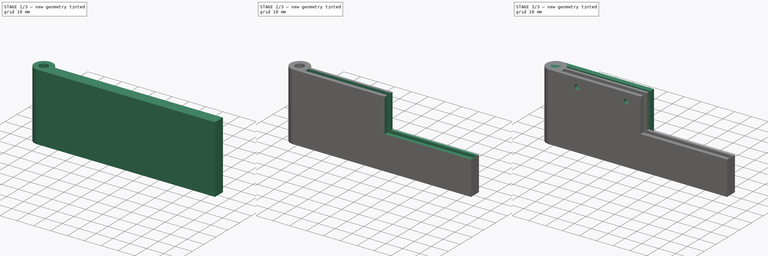
[diagram: build sequence overview — one tinted view per stage of 3, left to right]
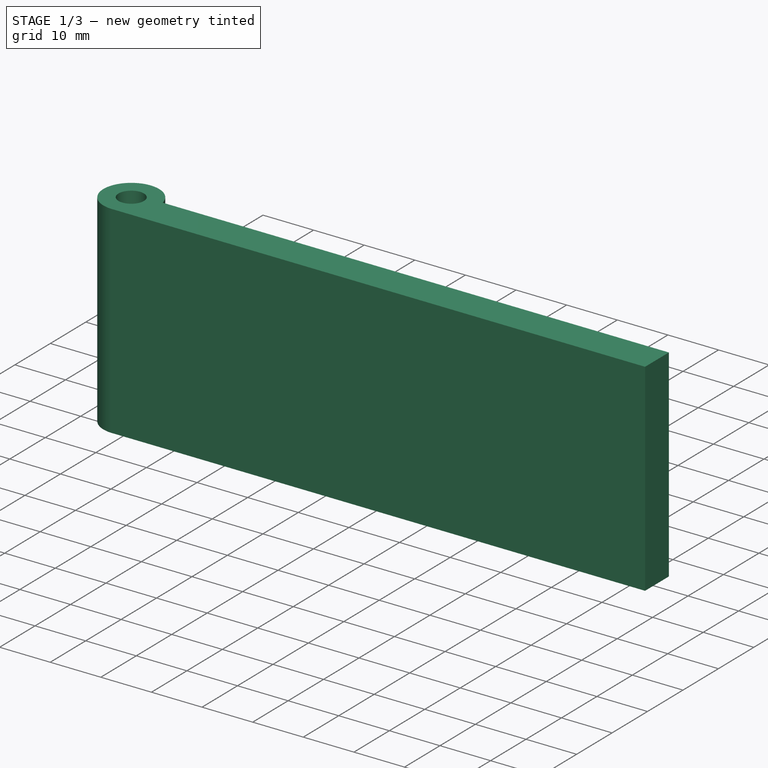
[diagram: stage 1 of 3 — iso view after this stage's code; geometry added in this stage tinted green]
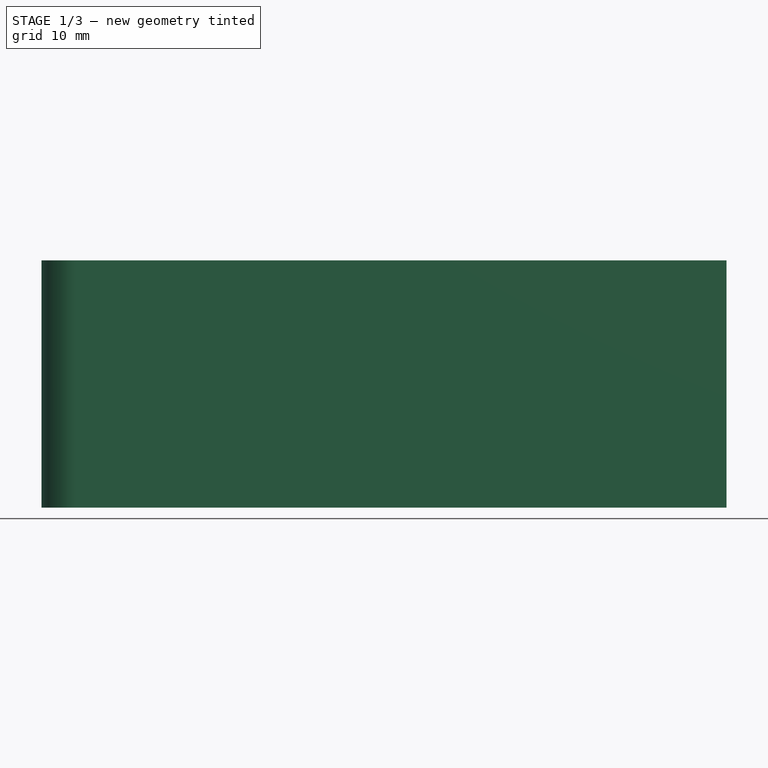
[diagram: stage 1 of 3 — front view after this stage's code; geometry added in this stage tinted green]
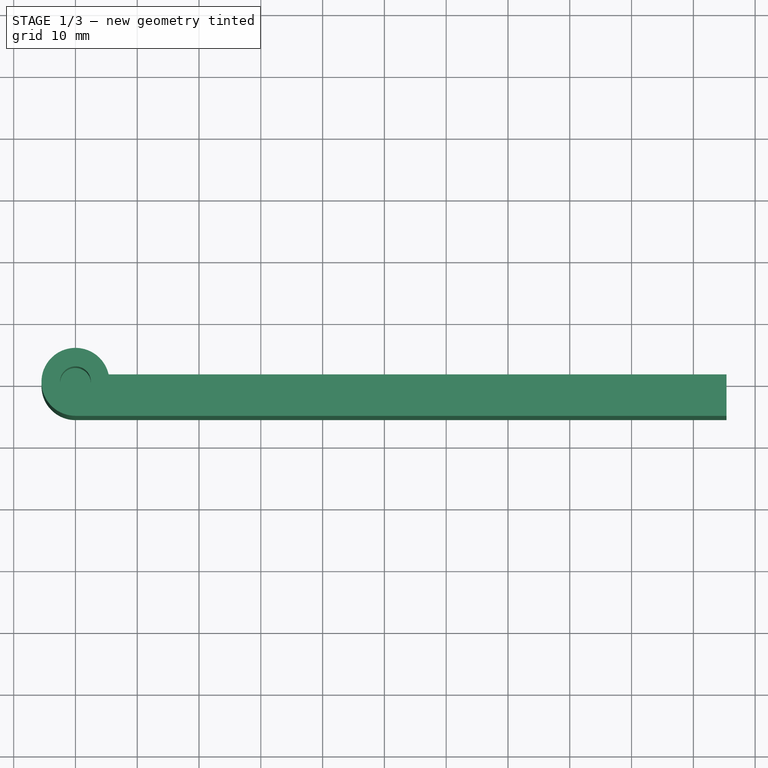
[diagram: stage 1 of 3 — top view after this stage's code; geometry added in this stage tinted green]
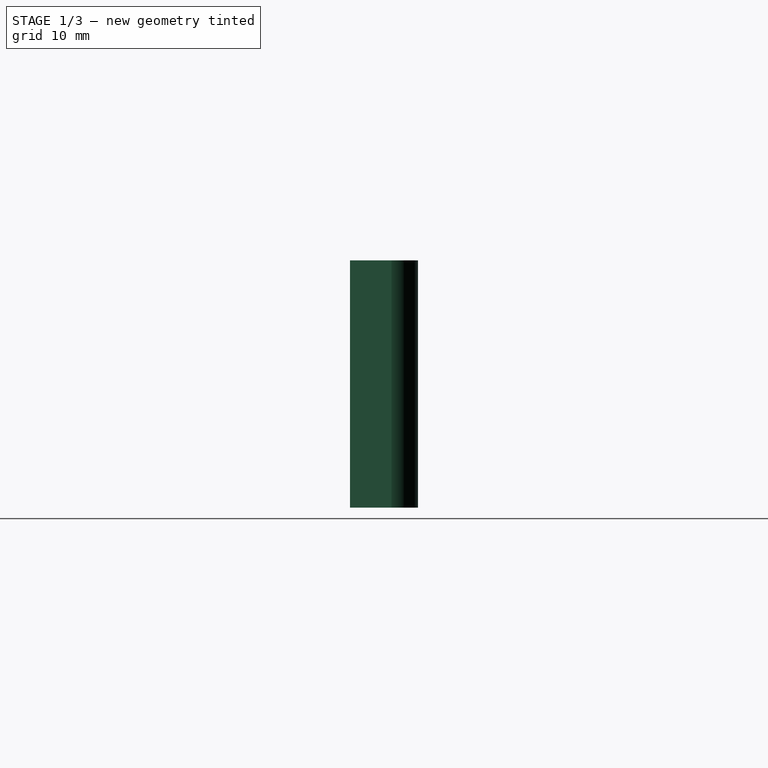
[diagram: stage 1 of 3 — right view after this stage's code; geometry added in this stage tinted green]
FCSTD DOCUMENT  (FreeCAD 0.16R6705 (Git))
Label: cerniera_fissa2
License: All rights reserved
LicenseURL: http://it.wikipedia.org/wiki/<copyright redacted>
objects: Sketcher::SketchObject×8, PartDesign::Pocket×6, PartDesign::Pad×2
note: 24 computed .brp shape members not serialized (recipe doc carries the construction recipe); baked Part::Feature solids carry a one-line shape summary decoded from their .brp

FEATURE [Sketcher::SketchObject] Sketch001
  sketch-geometry (4):
    g0: ArcOfCircle CenterX=0 CenterY=0 CenterZ=0 NormalX=0 NormalY=0 NormalZ=1 Radius=5.5 StartAngle=0.220699 EndAngle=4.71502
    g1: LineSegment StartX=5.3666 StartY=1.20401 StartZ=0 EndX=105.367 EndY=1.20401 EndZ=0
    g2: LineSegment StartX=105.367 StartY=1.20401 StartZ=0 EndX=105.367 EndY=-5.49998 EndZ=0
    g3: LineSegment StartX=105.367 StartY=-5.49998 StartZ=0 EndX=0.0144937 EndY=-5.49998 EndZ=0
  constraints (12):
    c: Radius(g0) = 5.5
    c: Coincident(g1,g2)
    c: Coincident(g2,g3)
    c: Horizontal(g1)
    c: Horizontal(g3)
    c: Vertical(g2)
    c: PointOnObject(g0,g1)
    c: PointOnObject(g0,g3)
    c: DistanceX(g1,g1) = 100
    c: Coincident(g0,g1)
    c: Coincident(g-1,g0)
    c: Coincident(g0,g3)
FEATURE [PartDesign::Pad] Pad001
  Length = 40
  Length2 = 100
  Reversed = true
  Sketch = -> Sketch001
  Type = 0
FEATURE [Sketcher::SketchObject] Sketch002
  ExternalGeometry = -> [Pad001]
  Placement = pos=(0,0,-40) rot=(1,0,0;3.14159rad)
  Support = -> Pad001 [Face6]
  sketch-geometry (1):
    g0: Circle CenterX=0 CenterY=0 CenterZ=0 NormalX=0 NormalY=0 NormalZ=1 Radius=4.5
  constraints (1):
    c: Radius(g0) = 4.5
FEATURE [PartDesign::Pocket] Pocket
  Length = 20
  Sketch = -> Sketch002
  Type = 0
FEATURE [Sketcher::SketchObject] Sketch003
  ExternalGeometry = -> [Pocket]
  Support = -> Pocket [Face4]
  sketch-geometry (1):
    g0: Circle CenterX=0 CenterY=0 CenterZ=0 NormalX=0 NormalY=0 NormalZ=1 Radius=2.50741
FEATURE [PartDesign::Pocket] Pocket001
  Length = 15
  Sketch = -> Sketch003
  Type = 0
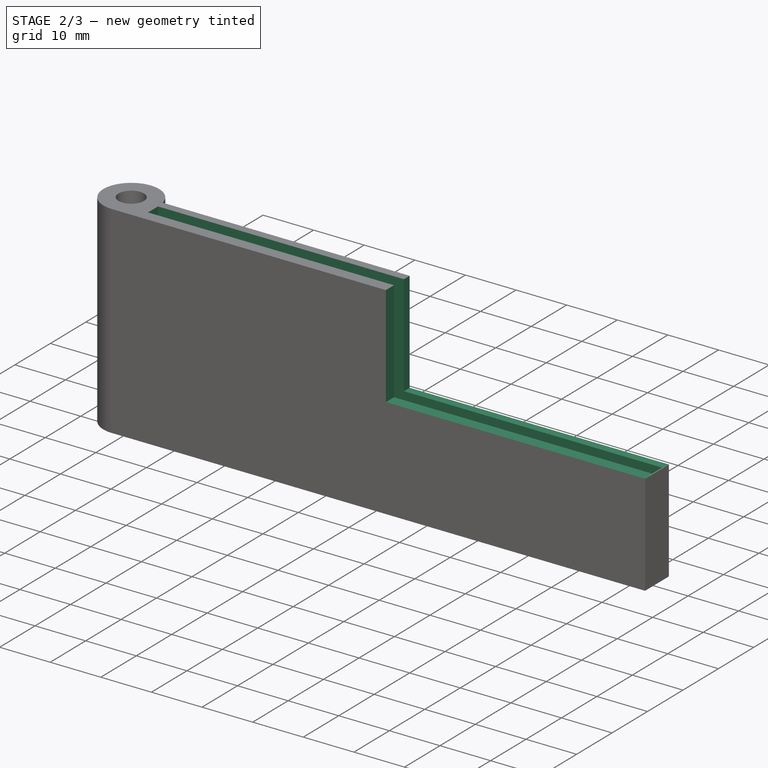
[diagram: stage 2 of 3 — iso view after this stage's code; geometry added in this stage tinted green]
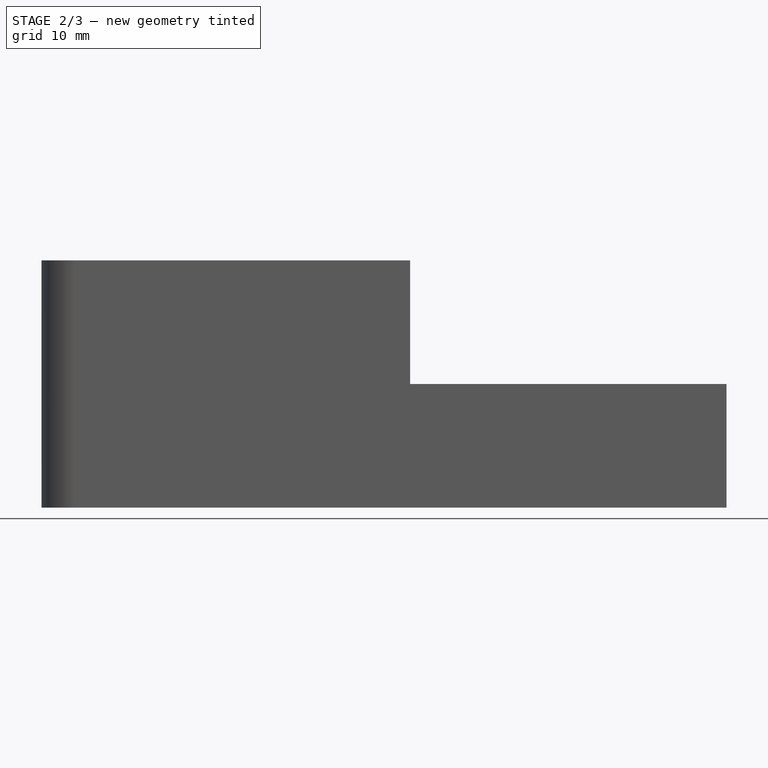
[diagram: stage 2 of 3 — front view after this stage's code; geometry added in this stage tinted green]
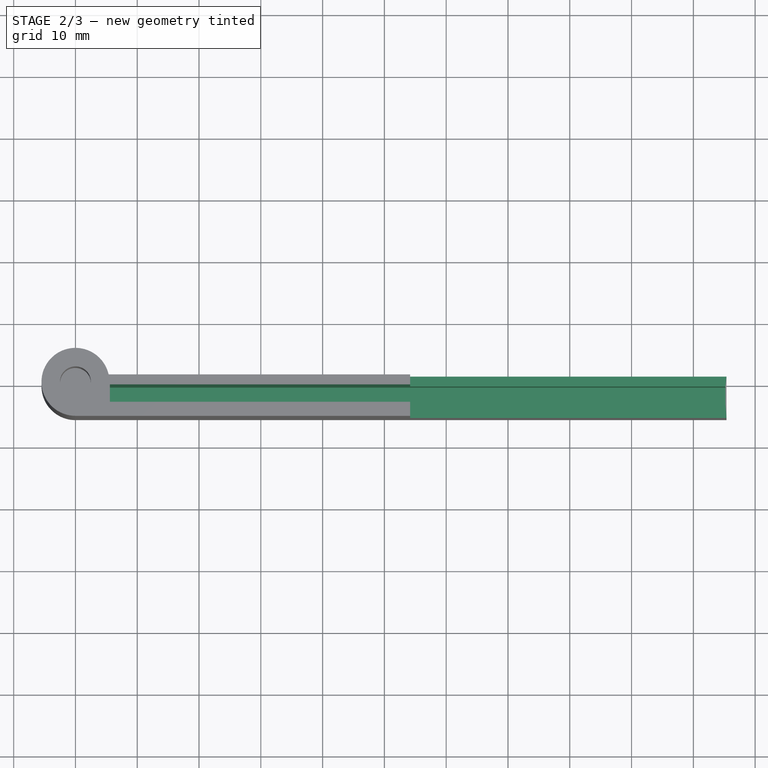
[diagram: stage 2 of 3 — top view after this stage's code; geometry added in this stage tinted green]
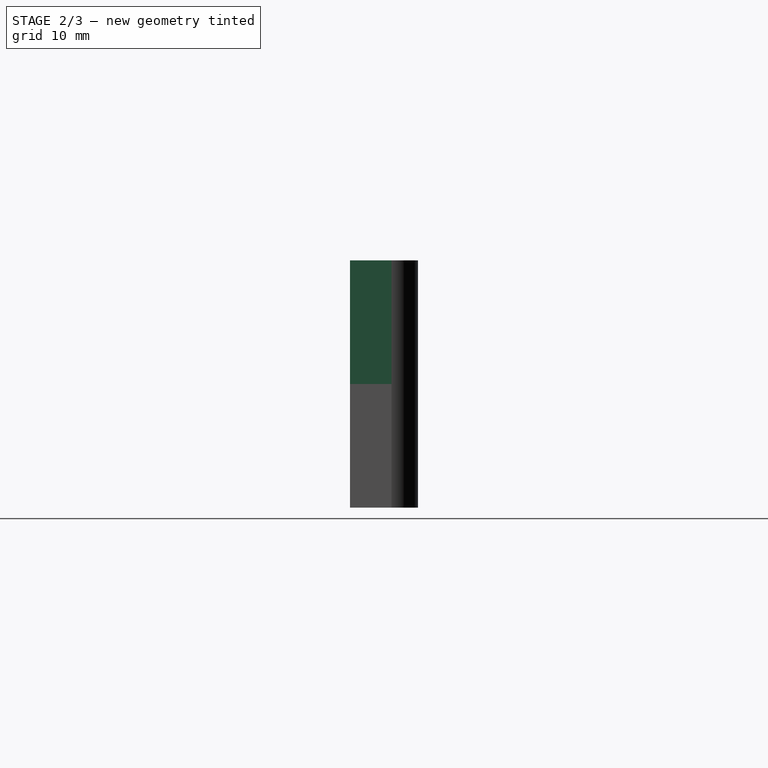
[diagram: stage 2 of 3 — right view after this stage's code; geometry added in this stage tinted green]
FEATURE [Sketcher::SketchObject] Sketch004
  ExternalGeometry = -> [Pocket001]
  Support = -> Pocket001 [Face4]
  sketch-geometry (4):
    g0: LineSegment StartX=54.1645 StartY=-5.64987 StartZ=0 EndX=105.367 EndY=-5.64987 EndZ=0
    g1: LineSegment StartX=105.367 StartY=-5.64987 StartZ=0 EndX=105.367 EndY=1.20401 EndZ=0
    g2: LineSegment StartX=105.367 StartY=1.20401 StartZ=0 EndX=54.1645 EndY=1.20401 EndZ=0
    g3: LineSegment StartX=54.1645 StartY=1.20401 StartZ=0 EndX=54.1645 EndY=-5.64987 EndZ=0
  constraints (9):
    c: Coincident(g0,g1)
    c: Horizontal(g0)
    c: Vertical(g1)
    c: Coincident(g1,g2)
    c: Coincident(g0,g3)
    c: Coincident(g3,g2)
    c: Vertical(g3)
    c: Horizontal(g2)
    c: Coincident(g-5,g1)
FEATURE [PartDesign::Pocket] Pocket002
  Length = 20
  Sketch = -> Sketch004
  Type = 0
FEATURE [Sketcher::SketchObject] Sketch005
  ExternalGeometry = -> [Pocket002]
  Support = -> Pocket002 [Face4]
  sketch-geometry (4):
    g0: LineSegment StartX=105.176 StartY=-0.413809 StartZ=0 EndX=5.56805 EndY=-0.413809 EndZ=0
    g1: LineSegment StartX=5.56805 StartY=-0.413809 StartZ=0 EndX=5.56805 EndY=-3.21381 EndZ=0
    g2: LineSegment StartX=5.56805 StartY=-3.21381 StartZ=0 EndX=105.176 EndY=-3.21381 EndZ=0
    g3: LineSegment StartX=105.176 StartY=-3.21381 StartZ=0 EndX=105.176 EndY=-0.413809 EndZ=0
  constraints (9):
    c: Coincident(g0,g1)
    c: Coincident(g1,g2)
    c: Coincident(g2,g3)
    c: Coincident(g3,g0)
    c: Horizontal(g0)
    c: Horizontal(g2)
    c: Vertical(g1)
    c: Vertical(g3)
    c: DistanceY(g1,g0) = 2.8
FEATURE [PartDesign::Pocket] Pocket003  label="cerniera_mobile"
  Length = 30
  Sketch = -> Sketch005
  Type = 0
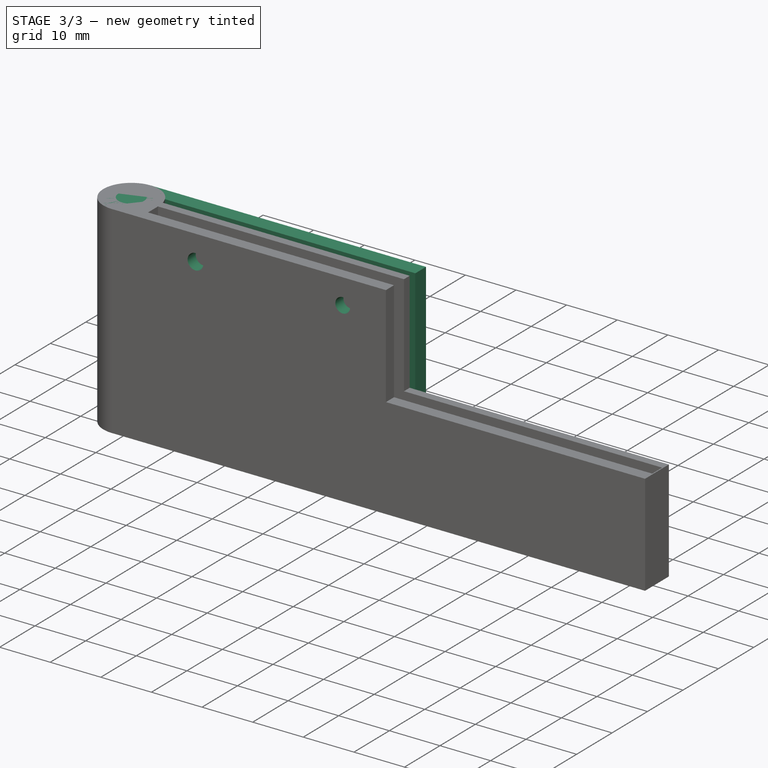
[diagram: stage 3 of 3 — iso view after this stage's code; geometry added in this stage tinted green]
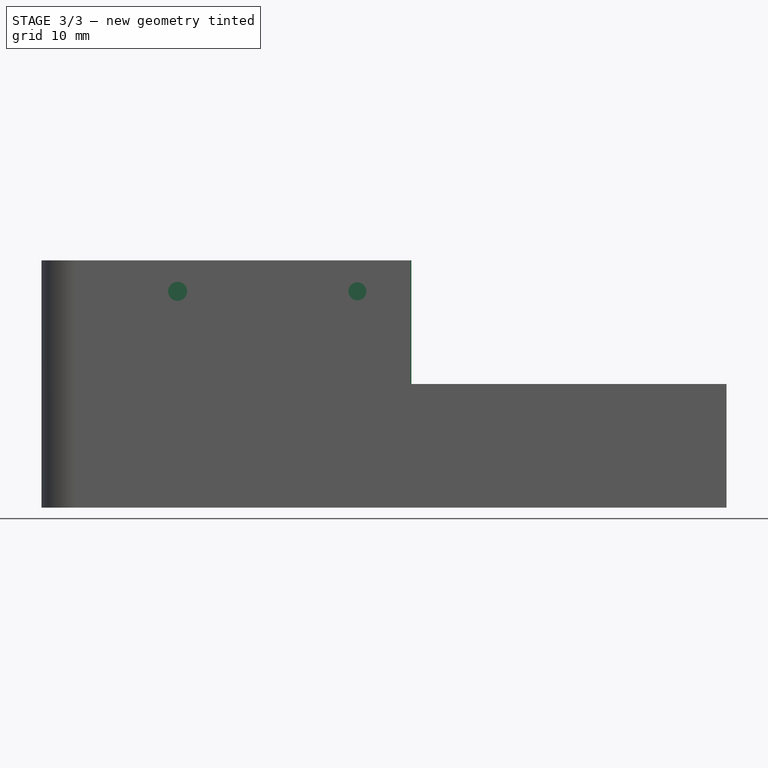
[diagram: stage 3 of 3 — front view after this stage's code; geometry added in this stage tinted green]
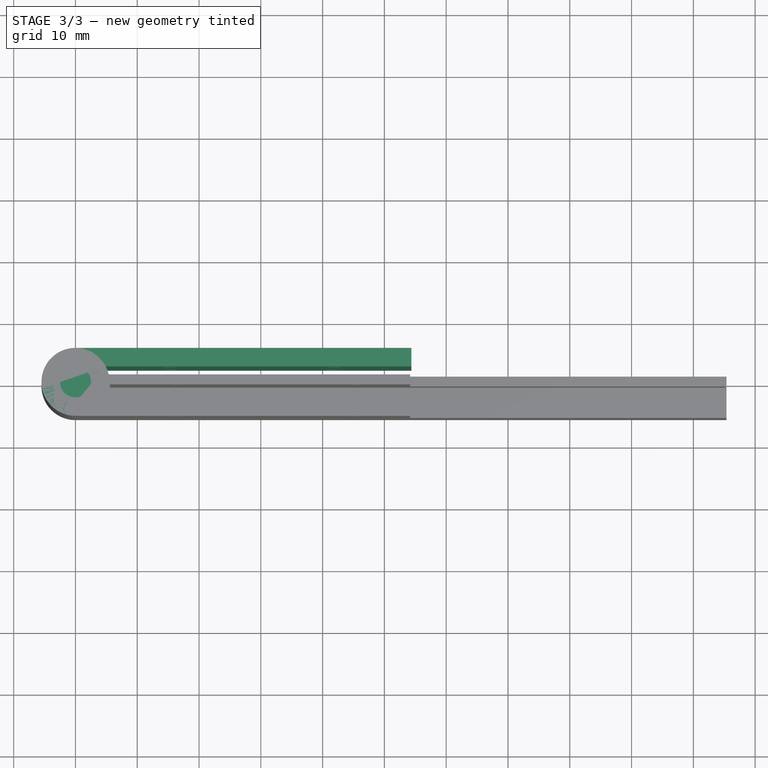
[diagram: stage 3 of 3 — top view after this stage's code; geometry added in this stage tinted green]
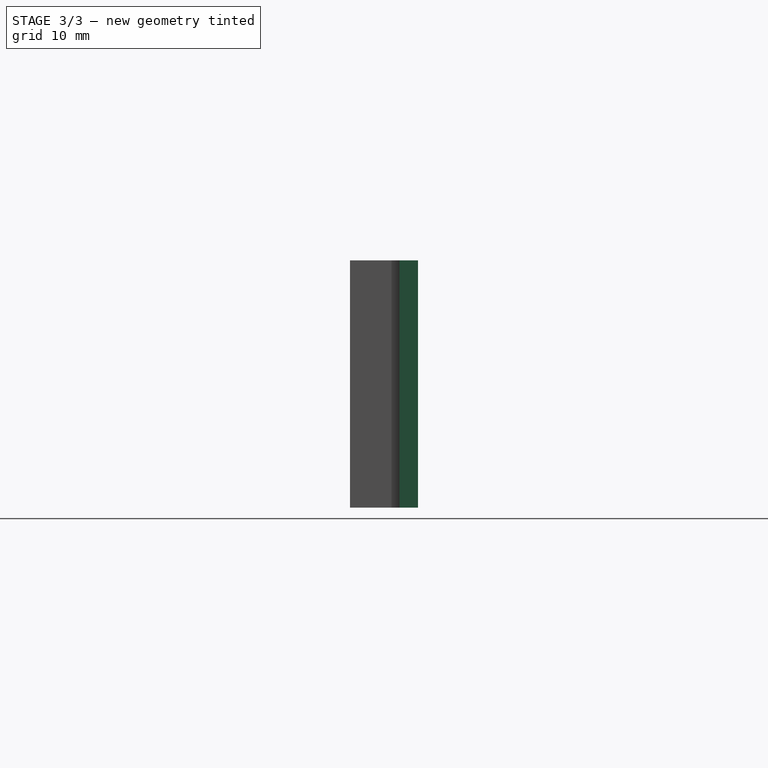
[diagram: stage 3 of 3 — right view after this stage's code; geometry added in this stage tinted green]
FEATURE [Sketcher::SketchObject] Sketch
  sketch-geometry (4):
    g0: ArcOfCircle CenterX=0 CenterY=0 CenterZ=0 NormalX=0 NormalY=0 NormalZ=1 Radius=5.5 StartAngle=1.58758 EndAngle=6.75489
    g1: LineSegment StartX=-0.0923326 StartY=5.49922 StartZ=0 EndX=54.3701 EndY=5.49922 EndZ=0
    g2: LineSegment StartX=54.3701 StartY=5.49922 StartZ=0 EndX=54.3701 EndY=2.49922 EndZ=0
    g3: LineSegment StartX=54.3701 StartY=2.49922 StartZ=0 EndX=4.89937 EndY=2.49922 EndZ=0
  constraints (10):
    c: Coincident(g1,g2)
    c: Coincident(g2,g3)
    c: Horizontal(g1)
    c: Horizontal(g3)
    c: Vertical(g2)
    c: Coincident(g-1,g0)
    c: DistanceY(g2,g1) = 3
    c: Coincident(g0,g1)
    c: Coincident(g0,g3)
    c: Radius(g0) = 5.5
FEATURE [PartDesign::Pad] Pad
  Length = 40
  Length2 = 100
  Reversed = true
  Sketch = -> Sketch
  Type = 0
FEATURE [Sketcher::SketchObject] Sketch006
  Placement = pos=(0,2.49922,0) rot=(1,0,0;1.5708rad)
  Support = -> Pad [Face2]
  sketch-geometry (6):
    g0: Circle CenterX=15.5573 CenterY=-7.97207 CenterZ=0 NormalX=0 NormalY=0 NormalZ=1 Radius=1.48659
    g1: Circle CenterX=41.944 CenterY=-7.97207 CenterZ=0 NormalX=0 NormalY=0 NormalZ=1 Radius=1.4574
    g2: LineSegment [constr] StartX=15.5573 StartY=-7.97207 StartZ=0 EndX=41.944 EndY=-7.97207 EndZ=0
    g3: LineSegment [constr] StartX=15.5573 StartY=-30.1329 StartZ=0 EndX=41.944 EndY=-30.1329 EndZ=0
    g4: Circle CenterX=15.5573 CenterY=-30.1329 CenterZ=0 NormalX=0 NormalY=0 NormalZ=1 Radius=1.49072
    g5: Circle CenterX=41.944 CenterY=-30.1329 CenterZ=0 NormalX=0 NormalY=0 NormalZ=1 Radius=1.49072
  constraints (8):
    c: Horizontal(g2)
    c: Coincident(g2,g1)
    c: Coincident(g2,g0)
    c: Horizontal(g3)
    c: DistanceX(g3,g0) = 0
    c: Equal(g2,g3)
    c: Coincident(g3,g4)
    c: Coincident(g3,g5)
FEATURE [PartDesign::Pocket] Pocket004  label="cerniera_fissa_buchi"
  Length = 5
  Sketch = -> Sketch006
  Type = 1
FEATURE [Sketcher::SketchObject] Sketch007
  ExternalGeometry = -> [Pocket003]
  Placement = pos=(0,-5.49998,0) rot=(1,0,0;1.5708rad)
  Support = -> Pocket003 [Face3]
  sketch-geometry (4):
    g0: LineSegment [constr] StartX=10.9815 StartY=-5 StartZ=0 EndX=99.221 EndY=-5 EndZ=0
    g1: Circle CenterX=88.2587 CenterY=-5 CenterZ=0 NormalX=0 NormalY=0 NormalZ=1 Radius=1.54307
    g2: Circle CenterX=16.5303 CenterY=-5 CenterZ=0 NormalX=0 NormalY=0 NormalZ=1 Radius=1.54307
    g3: Circle CenterX=45.6277 CenterY=-5 CenterZ=0 NormalX=0 NormalY=0 NormalZ=1 Radius=1.45762
  constraints (5):
    c: Horizontal(g0)
    c: DistanceY(g0,g-3) = 5
    c: PointOnObject(g2,g0)
    c: PointOnObject(g1,g0)
    c: PointOnObject(g3,g0)
FEATURE [PartDesign::Pocket] Pocket005
  Length = 5
  Sketch = -> Sketch007
  Type = 1
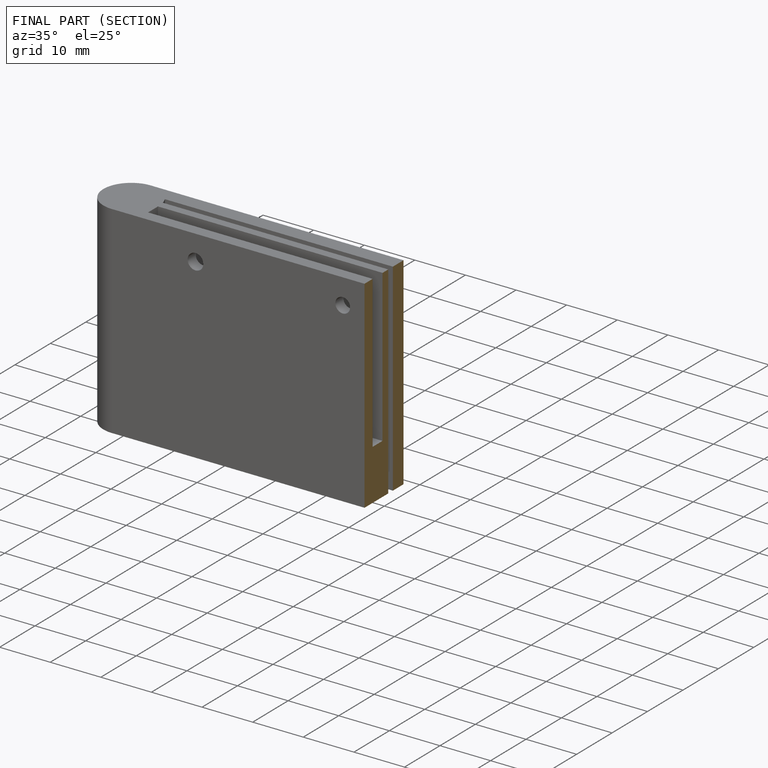
[diagram: finished part — half-section view (interior)]
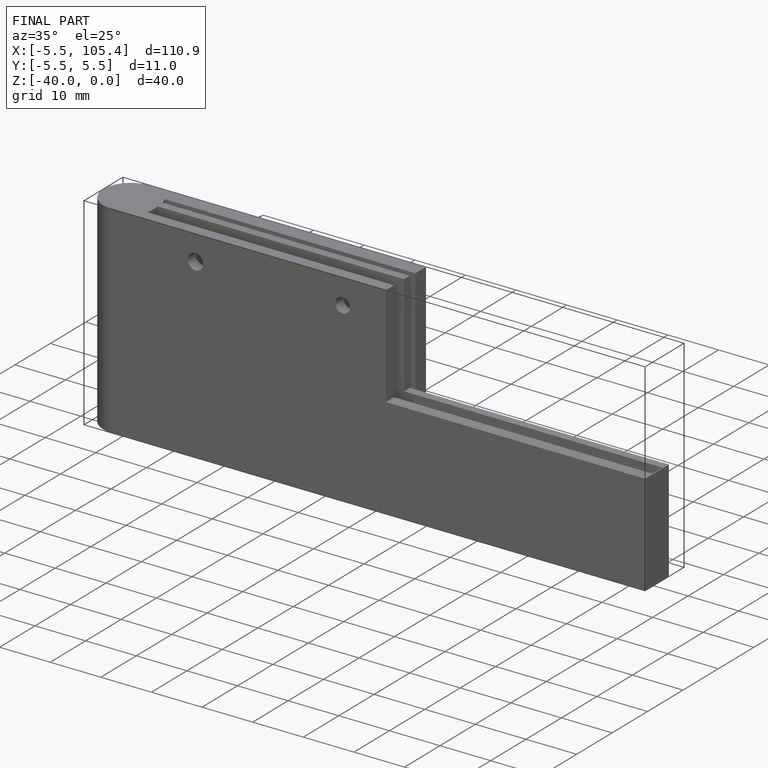
[diagram: finished part — iso view with bounding-box wireframe]
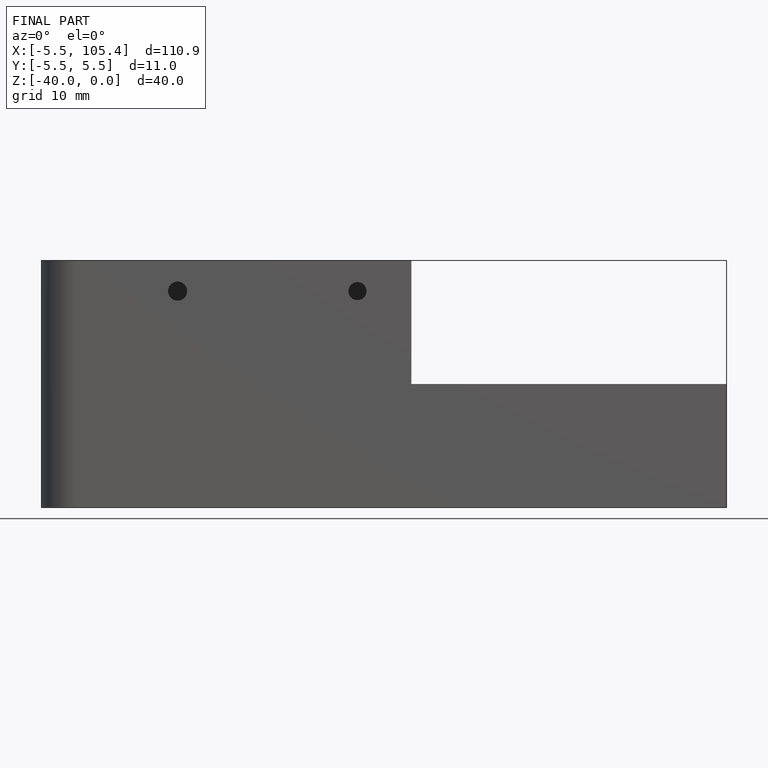
[diagram: finished part — front view with bounding-box wireframe]
